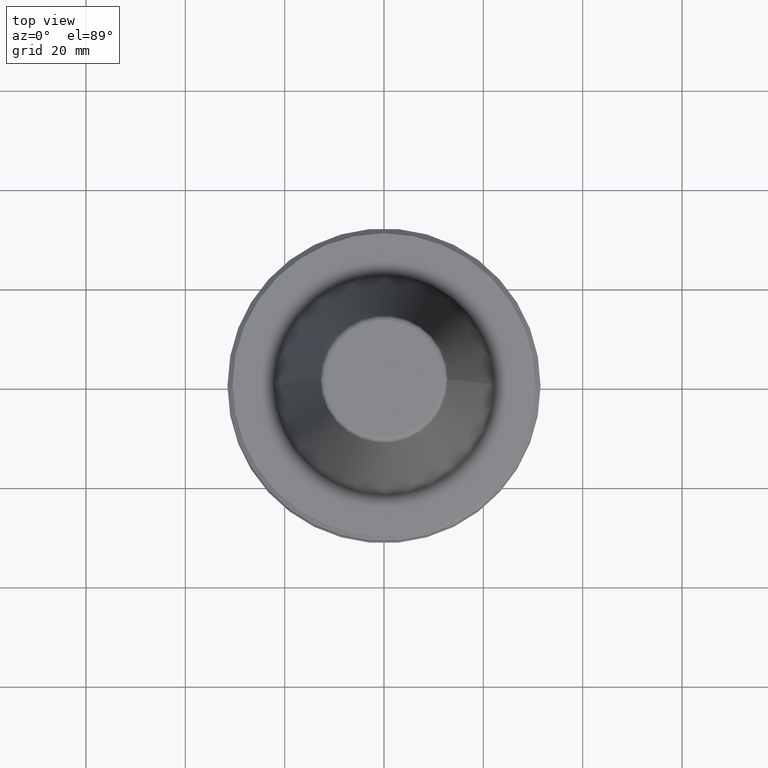
[diagram: clean part render]
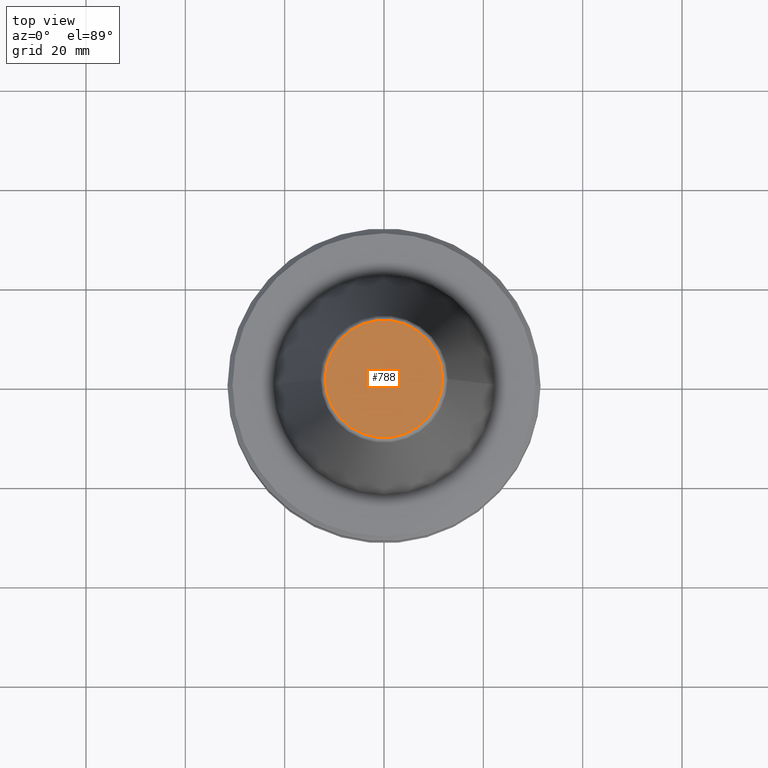
[diagram: same view with one face highlighted and labeled with its STEP entity id]
A machine part, top view. The second image highlights one B-rep face of the part: STEP entity #788.
In plain terms, the highlighted planar face has unit normal (0, 0, -1).
Its self-contained STEP definition (entity closure, byte-faithful):
#9 = DIRECTION ( 'NONE',  ( -0.0000000000000000000, -0.0000000000000000000, 1.000000000000000000 ) ) ;
#15 = CARTESIAN_POINT ( 'NONE',  ( 0.0000000000000000000, 0.0000000000000000000, -4.440892098500626200E-013 ) ) ;
#21 = ORIENTED_EDGE ( 'NONE', *, *, #381, .T. ) ;
#100 = DIRECTION ( 'NONE',  ( -1.000000000000000000, 0.0000000000000000000, -0.0000000000000000000 ) ) ;
#247 = CARTESIAN_POINT ( 'NONE',  ( 0.0000000000000000000, 0.0000000000000000000, -4.440892098500626200E-013 ) ) ;
#250 = CIRCLE ( 'NONE', #574, 11.82266927716813000 ) ;
#276 = CIRCLE ( 'NONE', #893, 11.82266927716813000 ) ;
#311 = ORIENTED_EDGE ( 'NONE', *, *, #825, .T. ) ;
#338 = DIRECTION ( 'NONE',  ( 1.000000000000000000, 0.0000000000000000000, 0.0000000000000000000 ) ) ;
#365 = EDGE_LOOP ( 'NONE', ( #311, #21 ) ) ;
#381 = EDGE_CURVE ( 'NONE', #784, #665, #276, .T. ) ;
#505 = CARTESIAN_POINT ( 'NONE',  ( 0.0000000000000000000, 0.0000000000000000000, -4.440892098500626200E-013 ) ) ;
#511 = PLANE ( 'NONE',  #880 ) ;
#574 = AXIS2_PLACEMENT_3D ( 'NONE', #505, #9, #602 ) ;
#602 = DIRECTION ( 'NONE',  ( 1.000000000000000000, 0.0000000000000000000, 0.0000000000000000000 ) ) ;
#609 = DIRECTION ( 'NONE',  ( 0.0000000000000000000, 0.0000000000000000000, -1.000000000000000000 ) ) ;
#665 = VERTEX_POINT ( 'NONE', #802 ) ;
#784 = VERTEX_POINT ( 'NONE', #987 ) ;
#788 = ADVANCED_FACE ( 'NONE', ( #970 ), #511, .F. ) ;
#802 = CARTESIAN_POINT ( 'NONE',  ( 11.82266927716813000, 0.0000000000000000000, -4.440892098500626200E-013 ) ) ;
#823 = DIRECTION ( 'NONE',  ( -0.0000000000000000000, -0.0000000000000000000, 1.000000000000000000 ) ) ;
#825 = EDGE_CURVE ( 'NONE', #665, #784, #250, .T. ) ;
#880 = AXIS2_PLACEMENT_3D ( 'NONE', #15, #609, #100 ) ;
#893 = AXIS2_PLACEMENT_3D ( 'NONE', #247, #823, #338 ) ;
#970 = FACE_OUTER_BOUND ( 'NONE', #365, .T. ) ;
#987 = CARTESIAN_POINT ( 'NONE',  ( -11.82266927716813000, 1.508450817090336800E-015, -4.440892098500626200E-013 ) ) ;